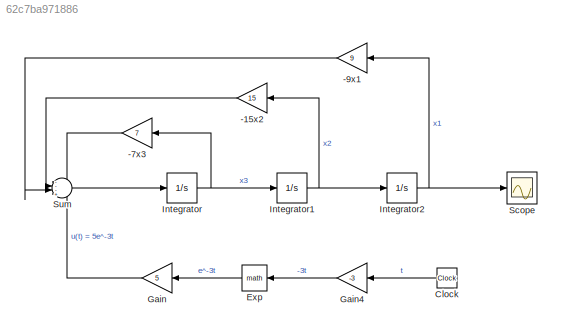
MODEL slx_62c7ba971886
KIND model
CONFIG AbsTol = auto
CONFIG EnableMultiTasking = off
CONFIG FixedStep = auto
CONFIG MaxStep = 0.01
CONFIG MinStep = auto
CONFIG RelTol = 1e-6
CONFIG SampleTimeConstraint = Unconstrained
CONFIG SolverName = VariableStepAuto
CONFIG StartTime = 0.0
CONFIG StopTime = 10.0
BLOCK [Gain] -15x2
  Gain = 15
BLOCK [Gain] -7x3
  Gain = 7
BLOCK [Gain] -9x1
  Gain = 9
BLOCK [Clock] Clock
  NameLocation = top
BLOCK [Math] Exp
BLOCK [Gain] Gain
  Gain = 5
BLOCK [Gain] Gain4
  Gain = -3
BLOCK [Integrator] Integrator
  AbsoluteTolerance = 1e-6
BLOCK [Integrator] Integrator1
  AbsoluteTolerance = 1e-6
BLOCK [Integrator] Integrator2
  AbsoluteTolerance = 1e-6
BLOCK [Scope] Scope
  ActiveDisplayYMaximum = 0.095405909317226811
  ActiveDisplayYMinimum = -0.017246292180660684
  Floating = off
  GraphicalSettings = {"Style":{"BackgroundColor":[1,1,1],"AxesColor":[1,1,1],"LabelsColor":[0.14901960784313725,0.14901960784313725,0.14901960784313725],"PreserveColors":false,"Visible":[true],"LineStyle":["-"],"LineWidth":[3],"BarWidth":[0.9],"LineColor":["auto"],"LineFaceAlpha":[1],"LineEdgeAlpha":[1],"Marker":["none"],"FontSize":8.5,"LineTrueColor":[[0.9294117647058824,0.6941176470588235,0.12549019607843137]],"Chan...<+1905ch>
  MultipleDisplayCache = [{"MaxYLimMag":0.091960980814602022,"MaxYLimReal":0.095405909317226811,"MinYLimMag":0,"MinYLimReal":-0.017246292180660684,"PlotAsMagnitudePhase":false,"ShowGrid":true,"ShowLegend":false,"Title":"%<SignalLabel>","YLabel":""}]
  NumInputPorts = 1
  ScopeFrameLocation = window
  WasSavedAsWebScope = on
  WindowPosition = [1151.000000,540.000000,649.000000,580.000000,]
BLOCK [Sum] Sum
  Inputs = ---+
LINE -15x2:1 -> Sum:2
LINE -7x3:1 -> Sum:1
LINE -9x1:1 -> Sum:3
LINE Clock:1 -> Gain4:1
LINE Exp:1 -> Gain:1
LINE Gain4:1 -> Exp:1
LINE Gain:1 -> Sum:4
NET Integrator1:1 -> -15x2:1, Integrator2:1
NET Integrator2:1 -> -9x1:1, Scope:1
NET Integrator:1 -> -7x3:1, Integrator1:1
LINE Sum:1 -> Integrator:1
note: NET lines group one-source signal fan-out (src -> all destinations, sorted); 1:1 wires keep LINE
